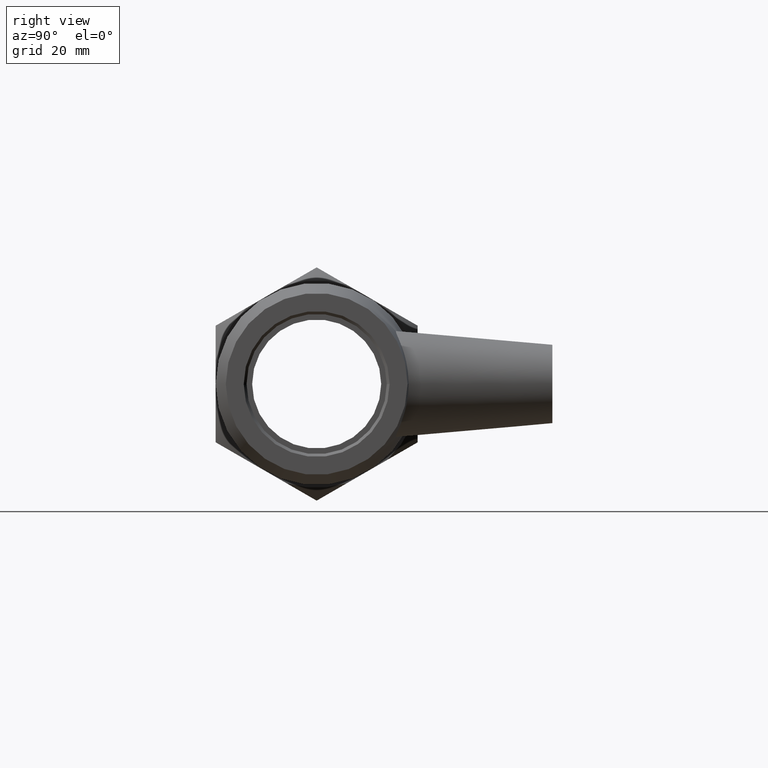
[diagram: clean part render]
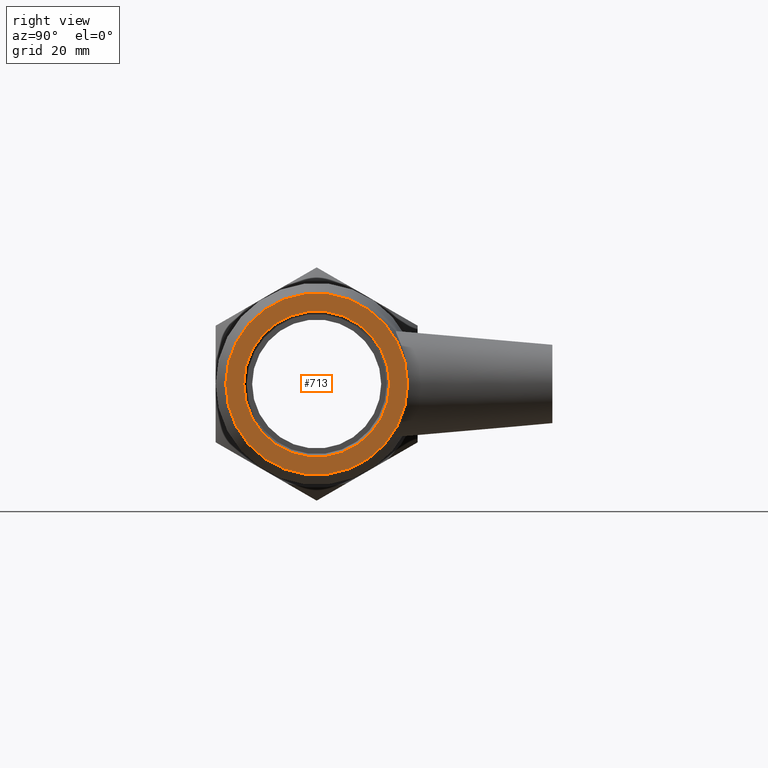
[diagram: same view with one face highlighted and labeled with its STEP entity id]
A machine part, right view. The second image highlights one B-rep face of the part: STEP entity #713.
In plain terms, the highlighted planar face has unit normal (1, 0, 0).
Its self-contained STEP definition (entity closure, byte-faithful):
#99=PLANE('',#771);
#124=FACE_BOUND('',#210,.T.);
#154=FACE_OUTER_BOUND('',#209,.T.);
#209=EDGE_LOOP('',(#504));
#210=EDGE_LOOP('',(#505));
#291=CIRCLE('',#769,13.);
#293=CIRCLE('',#772,16.2);
#336=VERTEX_POINT('',#1093);
#338=VERTEX_POINT('',#1098);
#407=EDGE_CURVE('',#336,#336,#291,.T.);
#409=EDGE_CURVE('',#338,#338,#293,.T.);
#504=ORIENTED_EDGE('',*,*,#409,.T.);
#505=ORIENTED_EDGE('',*,*,#407,.F.);
#713=ADVANCED_FACE('',(#154,#124),#99,.T.);
#769=AXIS2_PLACEMENT_3D('',#1094,#871,#872);
#771=AXIS2_PLACEMENT_3D('',#1097,#875,#876);
#772=AXIS2_PLACEMENT_3D('',#1099,#877,#878);
#871=DIRECTION('center_axis',(1.,0.,0.));
#872=DIRECTION('ref_axis',(0.,-1.,0.));
#875=DIRECTION('center_axis',(1.,0.,0.));
#876=DIRECTION('ref_axis',(0.,0.,-1.));
#877=DIRECTION('center_axis',(1.,0.,0.));
#878=DIRECTION('ref_axis',(0.,0.,-1.));
#1093=CARTESIAN_POINT('',(40.,13.,1.59204083889156E-15));
#1094=CARTESIAN_POINT('Origin',(40.,0.,0.));
#1097=CARTESIAN_POINT('Origin',(40.,12.5,0.));
#1098=CARTESIAN_POINT('',(40.,16.2,0.));
#1099=CARTESIAN_POINT('Origin',(40.,0.,0.));